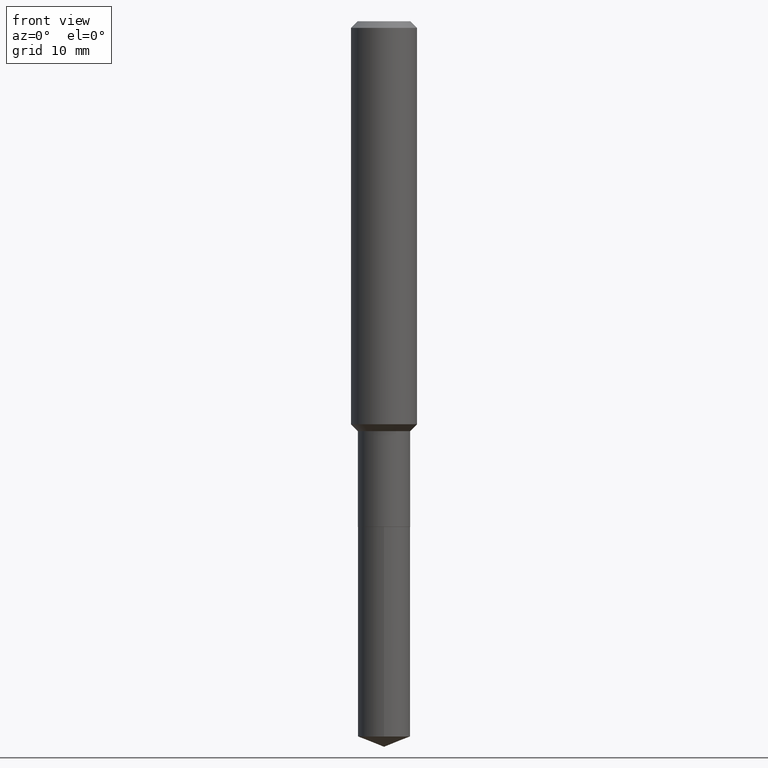
[diagram: clean part render]
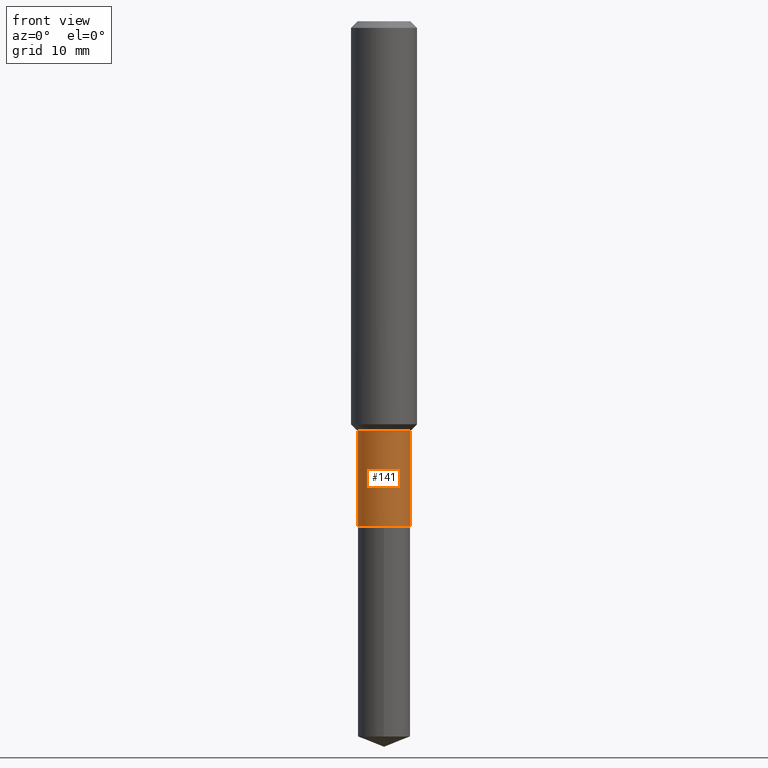
[diagram: same view with one face highlighted and labeled with its STEP entity id]
A machine part, front view. The second image highlights one B-rep face of the part: STEP entity #141.
In plain terms, the highlighted cylindrical surface (edge-blend (fillet) strip) has radius 2.3812 mm, axis along (-0, 0, 1).
Its self-contained STEP definition (entity closure, byte-faithful):
#7 = LINE ( 'NONE', #224, #334 ) ;
#49 = AXIS2_PLACEMENT_3D ( 'NONE', #275, #421, #285 ) ;
#50 = AXIS2_PLACEMENT_3D ( 'NONE', #399, #331, #362 ) ;
#60 = DIRECTION ( 'NONE',  ( -2.445468806185136877E-29, 3.491481338843145188E-15, 1.000000000000000000 ) ) ;
#93 = EDGE_LOOP ( 'NONE', ( #327, #292, #413, #105 ) ) ;
#94 = CIRCLE ( 'NONE', #254, 0.09374999999999995837 ) ;
#101 = CARTESIAN_POINT ( 'NONE',  ( 0.09374999999999997224, -6.546527510330873069E-16, 4.571415727308688405E-30 ) ) ;
#105 = ORIENTED_EDGE ( 'NONE', *, *, #294, .F. ) ;
#108 = EDGE_CURVE ( 'NONE', #244, #290, #7, .T. ) ;
#140 = CYLINDRICAL_SURFACE ( 'NONE', #49, 0.09374999999999997224 ) ;
#141 = ADVANCED_FACE ( 'NONE', ( #448 ), #140, .T. ) ;
#196 = VERTEX_POINT ( 'NONE', #372 ) ;
#224 = CARTESIAN_POINT ( 'NONE',  ( -0.09374999999999997224, 6.661338147750937270E-16, -4.611501647113972594E-30 ) ) ;
#230 = DIRECTION ( 'NONE',  ( -2.445468806185136597E-29, 3.491481338843145583E-15, 1.000000000000000000 ) ) ;
#244 = VERTEX_POINT ( 'NONE', #488 ) ;
#250 = VERTEX_POINT ( 'NONE', #409 ) ;
#254 = AXIS2_PLACEMENT_3D ( 'NONE', #414, #230, #381 ) ;
#263 = CIRCLE ( 'NONE', #50, 0.09374999999999998612 ) ;
#266 = CARTESIAN_POINT ( 'NONE',  ( -0.09374999999999995837, -5.057102395856590568E-15, -1.467899999999999983 ) ) ;
#275 = CARTESIAN_POINT ( 'NONE',  ( 0.000000000000000000, 0.000000000000000000, 0.000000000000000000 ) ) ;
#285 = DIRECTION ( 'NONE',  ( 1.000000000000000000, -6.982962677686266711E-15, 4.876176775795935793E-29 ) ) ;
#290 = VERTEX_POINT ( 'NONE', #266 ) ;
#292 = ORIENTED_EDGE ( 'NONE', *, *, #467, .T. ) ;
#294 = EDGE_CURVE ( 'NONE', #290, #196, #94, .T. ) ;
#327 = ORIENTED_EDGE ( 'NONE', *, *, #108, .F. ) ;
#330 = VECTOR ( 'NONE', #60, 39.37007874015748143 ) ;
#331 = DIRECTION ( 'NONE',  ( -2.445468806185136597E-29, 3.491481338843145583E-15, 1.000000000000000000 ) ) ;
#334 = VECTOR ( 'NONE', #454, 39.37007874015748143 ) ;
#362 = DIRECTION ( 'NONE',  ( 1.000000000000000000, -6.982962677686263555E-15, 0.000000000000000000 ) ) ;
#372 = CARTESIAN_POINT ( 'NONE',  ( 0.09374999999999995837, -5.779798208320940419E-15, -1.467899999999999983 ) ) ;
#381 = DIRECTION ( 'NONE',  ( 1.000000000000000000, -6.982962677686265922E-15, 0.000000000000000000 ) ) ;
#399 = CARTESIAN_POINT ( 'NONE',  ( 4.427521273598189436E-29, -6.321326963975514491E-15, -1.810499999999999998 ) ) ;
#409 = CARTESIAN_POINT ( 'NONE',  ( 0.09374999999999998612, -6.975979715008601996E-15, -1.810499999999999998 ) ) ;
#413 = ORIENTED_EDGE ( 'NONE', *, *, #478, .T. ) ;
#414 = CARTESIAN_POINT ( 'NONE',  ( 3.589703660599161390E-29, -5.125145457287853703E-15, -1.467899999999999983 ) ) ;
#421 = DIRECTION ( 'NONE',  ( -2.445468806185136597E-29, 3.491481338843145583E-15, 1.000000000000000000 ) ) ;
#448 = FACE_OUTER_BOUND ( 'NONE', #93, .T. ) ;
#454 = DIRECTION ( 'NONE',  ( -2.445468806185136877E-29, 3.491481338843145188E-15, 1.000000000000000000 ) ) ;
#467 = EDGE_CURVE ( 'NONE', #244, #250, #263, .T. ) ;
#478 = EDGE_CURVE ( 'NONE', #250, #196, #481, .T. ) ;
#481 = LINE ( 'NONE', #101, #330 ) ;
#488 = CARTESIAN_POINT ( 'NONE',  ( -0.09374999999999998612, -5.057102395856590568E-15, -1.810499999999999998 ) ) ;